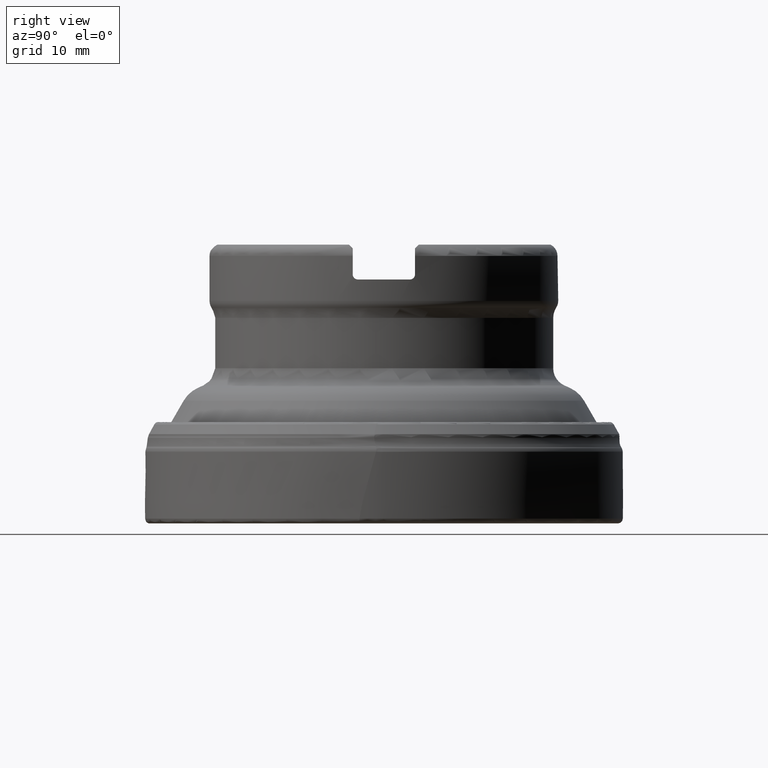
[diagram: clean part render]
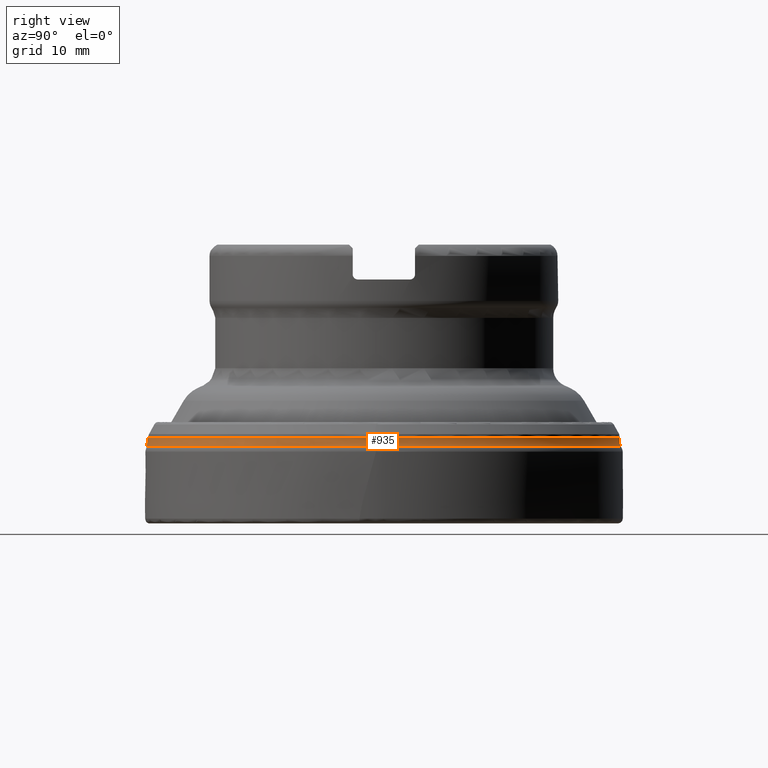
[diagram: same view with one face highlighted and labeled with its STEP entity id]
A machine part, right view. The second image highlights one B-rep face of the part: STEP entity #935.
In plain terms, the highlighted face is a SurfaceOfRevolution surface.
Its self-contained STEP definition (entity closure, byte-faithful):
#109=SURFACE_OF_REVOLUTION('',#4591,#130);
#130=AXIS1_PLACEMENT('',#17822,#5291);
#164=(
BOUNDED_CURVE()
B_SPLINE_CURVE(3,(#17790,#17791,#17792,#17793,#17794,#17795,#17796),
 .UNSPECIFIED.,.T.,.F.)
B_SPLINE_CURVE_WITH_KNOTS((1,3,3,3,1),(-0.5,0.,0.5,1.,1.5),
 .UNSPECIFIED.)
CURVE()
GEOMETRIC_REPRESENTATION_ITEM()
RATIONAL_B_SPLINE_CURVE((1.,0.333333333333333,0.333333333333333,1.,0.333333333333333,
0.333333333333333,1.))
REPRESENTATION_ITEM('')
);
#165=(
BOUNDED_CURVE()
B_SPLINE_CURVE(3,(#17806,#17807,#17808,#17809,#17810,#17811,#17812),
 .UNSPECIFIED.,.T.,.F.)
B_SPLINE_CURVE_WITH_KNOTS((1,3,3,3,1),(-0.5,0.,0.5,1.,1.5),
 .UNSPECIFIED.)
CURVE()
GEOMETRIC_REPRESENTATION_ITEM()
RATIONAL_B_SPLINE_CURVE((1.,0.333333333333333,0.333333333333333,1.,0.333333333333333,
0.333333333333333,1.))
REPRESENTATION_ITEM('')
);
#601=FACE_BOUND('',#1563,.T.);
#602=FACE_BOUND('',#1564,.T.);
#935=ADVANCED_FACE('',(#601,#602),#109,.F.);
#1563=EDGE_LOOP('',(#3025));
#1564=EDGE_LOOP('',(#3026));
#3025=ORIENTED_EDGE('',*,*,#4101,.T.);
#3026=ORIENTED_EDGE('',*,*,#4102,.F.);
#3449=VERTEX_POINT('',#17797);
#3450=VERTEX_POINT('',#17813);
#4101=EDGE_CURVE('',#3449,#3449,#164,.T.);
#4102=EDGE_CURVE('',#3450,#3450,#165,.T.);
#4591=B_SPLINE_CURVE_WITH_KNOTS('',3,(#17814,#17815,#17816,#17817,#17818,
#17819,#17820,#17821),.UNSPECIFIED.,.F.,.F.,(4,1,3,4),(0.,0.495049504950495,
0.99009900990099,1.),.UNSPECIFIED.);
#5291=DIRECTION('',(0.,0.,1.));
#17790=CARTESIAN_POINT('',(37.783637614051,-1.3158504335916,12.3590886600391));
#17791=CARTESIAN_POINT('',(40.4153384812342,74.2514247945103,12.3590886600391));
#17792=CARTESIAN_POINT('',(-35.1519367468678,76.8831256616935,12.3590886600391));
#17793=CARTESIAN_POINT('',(-37.783637614051,1.3158504335916,12.3590886600391));
#17794=CARTESIAN_POINT('',(-40.4153384812341,-74.2514247945103,12.3590886600391));
#17795=CARTESIAN_POINT('',(35.1519367468677,-76.8831256616935,12.3590886600391));
#17796=CARTESIAN_POINT('',(37.783637614051,-1.3158504335916,12.3590886600391));
#17797=CARTESIAN_POINT('',(37.7836485850524,-1.31585081566697,12.3590933798961));
#17806=CARTESIAN_POINT('',(37.607869842974,-1.51277304084364,13.6623153716268));
#17807=CARTESIAN_POINT('',(40.6334159246613,73.7029666451044,13.6623153716268));
#17808=CARTESIAN_POINT('',(-34.5823237612867,76.7285127267917,13.6623153716268));
#17809=CARTESIAN_POINT('',(-37.607869842974,1.51277304084365,13.6623153716268));
#17810=CARTESIAN_POINT('',(-40.6334159246613,-73.7029666451044,13.6623153716268));
#17811=CARTESIAN_POINT('',(34.5823237612867,-76.7285127267917,13.6623153716268));
#17812=CARTESIAN_POINT('',(37.607869842974,-1.51277304084364,13.6623153716268));
#17813=CARTESIAN_POINT('',(37.6078273108946,-1.51277132999474,13.6623207819517));
#17814=CARTESIAN_POINT('',(37.6077929635789,-1.51276496583826,13.6623886481635));
#17815=CARTESIAN_POINT('',(37.5807983229753,-1.49430841377753,13.4458008765859));
#17816=CARTESIAN_POINT('',(37.5791346073082,-1.43779349703586,12.991229650637));
#17817=CARTESIAN_POINT('',(37.6976702970063,-1.35680092526203,12.5562533900794));
#17818=CARTESIAN_POINT('',(37.7835999922834,-1.31582954603552,12.3591780969859));
#17819=CARTESIAN_POINT('',(37.785318586189,-1.31501011845099,12.355236591124));
#17820=CARTESIAN_POINT('',(37.7870371800945,-1.31419069086646,12.3512950852621));
#17821=CARTESIAN_POINT('',(37.7887557740001,-1.31337126328193,12.3473535794002));
#17822=CARTESIAN_POINT('',(0.,0.,0.));